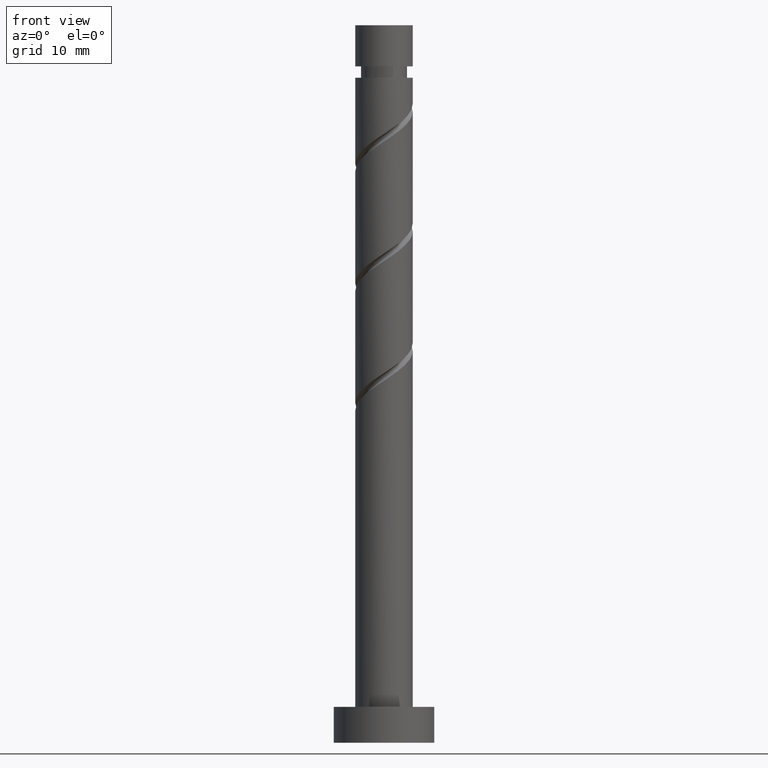
[diagram: clean part render]
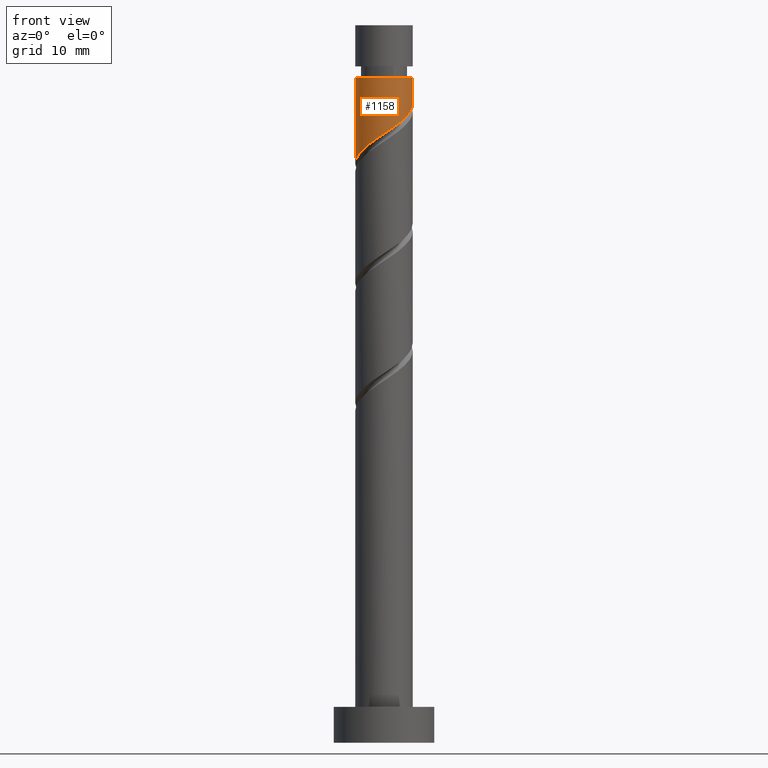
[diagram: same view with one face highlighted and labeled with its STEP entity id]
A machine part, front view. The second image highlights one B-rep face of the part: STEP entity #1158.
In plain terms, the highlighted cylindrical surface (edge-blend (fillet) strip) has radius 4 mm, axis along (-0, -0, -1).
Its self-contained STEP definition (entity closure, byte-faithful):
#2 = VERTEX_POINT ( 'NONE', #391 ) ;
#14 = CARTESIAN_POINT ( 'NONE',  ( -3.792814557677647969, -1.270652482415436824, 81.55810932454048157 ) ) ;
#58 = CARTESIAN_POINT ( 'NONE',  ( 0.000000000000000000, 0.000000000000000000, 100.0000000000000000 ) ) ;
#147 = EDGE_CURVE ( 'NONE', #1160, #503, #442, .T. ) ;
#170 = EDGE_CURVE ( 'NONE', #1405, #2, #239, .T. ) ;
#180 = DIRECTION ( 'NONE',  ( -1.000000000000000000, 0.000000000000000000, 0.000000000000000000 ) ) ;
#215 = AXIS2_PLACEMENT_3D ( 'NONE', #58, #395, #180 ) ;
#229 = CARTESIAN_POINT ( 'NONE',  ( 0.000000000000000000, 0.000000000000000000, 92.66922043565159584 ) ) ;
#239 =( BOUNDED_CURVE ( )  B_SPLINE_CURVE ( 2, ( #546, #315, #1384, #1026, #558, #1034, #1483, #1376, #323, #1300, #1411, #592, #255, #339, #1177, #585, #1062, #810, #14, #460, #349 ),
 .UNSPECIFIED., .F., .T. ) 
 B_SPLINE_CURVE_WITH_KNOTS ( ( 3, 2, 2, 2, 2, 2, 2, 2, 2, 2, 3 ),
 ( 0.3045248053855288961, 0.3055555555555555802, 0.3194444444444444198, 0.3333333333333333148, 0.3472222222222222099, 0.3611111111111111049, 0.3750000000000000000, 0.3888888888888888951, 0.4027777777777777901, 0.4166666666666666852, 0.4295248053855290626 ),
 .UNSPECIFIED. ) 
 CURVE ( )  GEOMETRIC_REPRESENTATION_ITEM ( )  RATIONAL_B_SPLINE_CURVE ( ( 0.9071930855141208117, 0.9080659294509685342, 0.9090909090909088386, 0.8952797754656434126, 0.9090909090909088386, 0.8952797754656434126, 0.9090909090909088386, 0.8952797754656434126, 0.9090909090909088386, 0.8952797754656434126, 0.9090909090909088386, 0.8952797754656434126, 0.9090909090909088386, 0.8952797754656434126, 0.9090909090909088386, 0.8952797754656434126, 0.9090909090909088386, 0.8952797754656434126, 0.9090909090909088386, 0.8963047551055834949, 0.9071930855141210337 ) ) 
 REPRESENTATION_ITEM ( '' )  );
#255 = CARTESIAN_POINT ( 'NONE',  ( -0.7959899496852959055, -3.920000000000000817, 84.33588710231828145 ) ) ;
#275 = CARTESIAN_POINT ( 'NONE',  ( -4.000000000000000000, 0.000000000000000000, 100.0000000000000000 ) ) ;
#291 = CARTESIAN_POINT ( 'NONE',  ( 4.000000000000000888, 4.898587196589413815E-16, 92.66922043565159584 ) ) ;
#315 = CARTESIAN_POINT ( 'NONE',  ( 4.000000000000000888, -0.05160669732807567772, 88.99939128337466343 ) ) ;
#323 = CARTESIAN_POINT ( 'NONE',  ( 1.909963752236258916, -3.514546694119113468, 86.18773895417010067 ) ) ;
#339 = CARTESIAN_POINT ( 'NONE',  ( -1.487191714062479519, -3.779645495497709895, 83.87292413935529112 ) ) ;
#340 = VECTOR ( 'NONE', #1316, 1000.000000000000000 ) ;
#349 = CARTESIAN_POINT ( 'NONE',  ( -4.000000000000000000, 2.614319145706411929E-15, 80.70007532397369232 ) ) ;
#353 = ORIENTED_EDGE ( 'NONE', *, *, #1440, .F. ) ;
#363 = DIRECTION ( 'NONE',  ( -0.000000000000000000, -0.000000000000000000, -1.000000000000000000 ) ) ;
#391 = CARTESIAN_POINT ( 'NONE',  ( -4.000000000000000000, 2.614319145706411929E-15, 80.70007532397369232 ) ) ;
#395 = DIRECTION ( 'NONE',  ( -0.000000000000000000, -0.000000000000000000, -1.000000000000000000 ) ) ;
#442 = CIRCLE ( 'NONE', #786, 4.000000000000000888 ) ;
#447 = DIRECTION ( 'NONE',  ( -1.000000000000000000, 0.000000000000000000, 0.000000000000000000 ) ) ;
#460 = CARTESIAN_POINT ( 'NONE',  ( -4.000000000000000000, -0.6522174872818273794, 81.12999483633930708 ) ) ;
#503 = VERTEX_POINT ( 'NONE', #534 ) ;
#534 = CARTESIAN_POINT ( 'NONE',  ( -4.000000000000000888, 0.000000000000000000, 92.66922043565159584 ) ) ;
#546 = CARTESIAN_POINT ( 'NONE',  ( 4.000000000000000888, 1.531244071056612786E-15, 89.03340865730700671 ) ) ;
#558 = CARTESIAN_POINT ( 'NONE',  ( 3.722224187603812240, -1.464597930224243560, 88.03959080602197673 ) ) ;
#585 = CARTESIAN_POINT ( 'NONE',  ( -2.690217973488802539, -3.043055458109501288, 82.94699821342938151 ) ) ;
#592 = CARTESIAN_POINT ( 'NONE',  ( -0.1047881853081140957, -4.060354504502291739, 84.79885006528120073 ) ) ;
#603 = ORIENTED_EDGE ( 'NONE', *, *, #1076, .T. ) ;
#650 = ORIENTED_EDGE ( 'NONE', *, *, #147, .T. ) ;
#708 = CARTESIAN_POINT ( 'NONE',  ( 4.000000000000000888, 1.531244071056612786E-15, 89.03340865730700671 ) ) ;
#786 = AXIS2_PLACEMENT_3D ( 'NONE', #229, #1249, #447 ) ;
#810 = CARTESIAN_POINT ( 'NONE',  ( -3.568764241923617409, -1.939428021757849230, 82.02107228750344348 ) ) ;
#850 = FACE_OUTER_BOUND ( 'NONE', #1153, .T. ) ;
#925 = ORIENTED_EDGE ( 'NONE', *, *, #170, .F. ) ;
#1026 = CARTESIAN_POINT ( 'NONE',  ( 3.980472318592122694, -0.8082693777040449445, 88.50255376898491022 ) ) ;
#1034 = CARTESIAN_POINT ( 'NONE',  ( 3.463976056615504895, -2.120926482744446062, 87.57662784305900061 ) ) ;
#1062 = CARTESIAN_POINT ( 'NONE',  ( -3.129491107706210418, -2.491241739933673927, 82.48403525046640539 ) ) ;
#1076 = EDGE_CURVE ( 'NONE', #503, #2, #1341, .T. ) ;
#1108 = CYLINDRICAL_SURFACE ( 'NONE', #215, 4.000000000000000000 ) ;
#1153 = EDGE_LOOP ( 'NONE', ( #353, #650, #603, #925 ) ) ;
#1158 = ADVANCED_FACE ( 'NONE', ( #850 ), #1108, .T. ) ;
#1160 = VERTEX_POINT ( 'NONE', #291 ) ;
#1177 = CARTESIAN_POINT ( 'NONE',  ( -2.088704843775641251, -3.411350476803604703, 83.40996117639232921 ) ) ;
#1249 = DIRECTION ( 'NONE',  ( -0.000000000000000000, -0.000000000000000000, -1.000000000000000000 ) ) ;
#1274 = LINE ( 'NONE', #1406, #1377 ) ;
#1300 = CARTESIAN_POINT ( 'NONE',  ( 1.290254345103317490, -3.851324835813545455, 85.72477599120715297 ) ) ;
#1316 = DIRECTION ( 'NONE',  ( -0.000000000000000000, -0.000000000000000000, -1.000000000000000000 ) ) ;
#1341 = LINE ( 'NONE', #275, #340 ) ;
#1376 = CARTESIAN_POINT ( 'NONE',  ( 2.529673159369199009, -3.177768552424685033, 86.65070191713306258 ) ) ;
#1377 = VECTOR ( 'NONE', #363, 1000.000000000000000 ) ;
#1384 = CARTESIAN_POINT ( 'NONE',  ( 3.998668596011898835, -0.1031962173155107215, 88.96551673194788634 ) ) ;
#1405 = VERTEX_POINT ( 'NONE', #708 ) ;
#1406 = CARTESIAN_POINT ( 'NONE',  ( 4.000000000000000000, 4.898587196589412829E-16, 100.0000000000000000 ) ) ;
#1411 = CARTESIAN_POINT ( 'NONE',  ( 0.5927330798976025994, -3.955839670157917709, 85.26181302824417685 ) ) ;
#1440 = EDGE_CURVE ( 'NONE', #1160, #1405, #1274, .T. ) ;
#1483 = CARTESIAN_POINT ( 'NONE',  ( 2.996824607992351286, -2.649347517584564216, 87.11366488009605291 ) ) ;